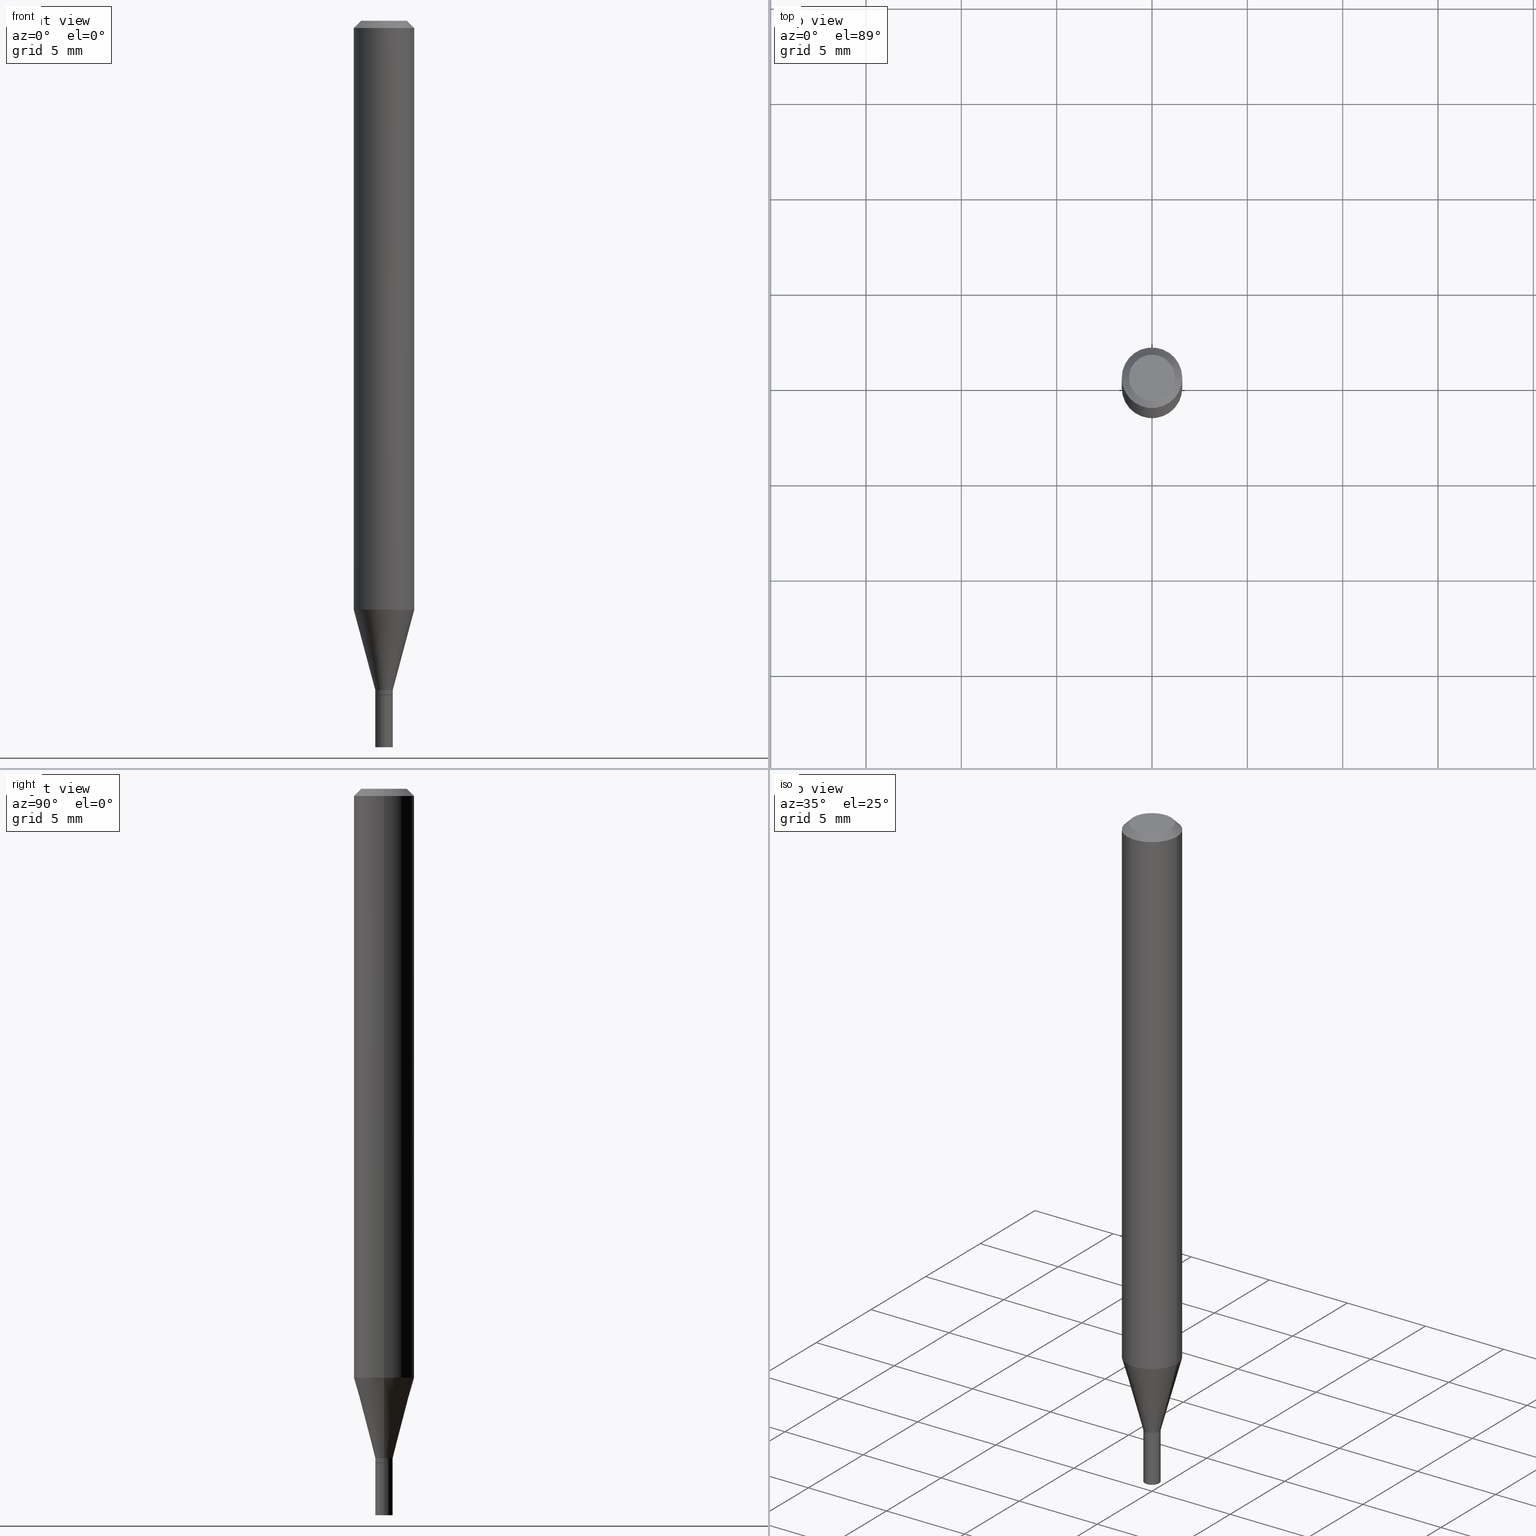
[diagram: canonical four-view strip — front | top / right | iso, engineering-drawing reading convention]
A machine part, canonical four-view strip (front | top / right | iso — engineering-drawing reading convention). The complete STEP part file that produces these views, byte-faithful:
ISO-10303-21;
HEADER;
FILE_DESCRIPTION (( 'STEP AP203' ),
    '1' );
FILE_NAME ('01187.STEP',
    '2024-03-19T23:48:16',
    ( '' ),
    ( '' ),
    'SwSTEP 2.0',
    'SolidWorks 2023',
    '' );
FILE_SCHEMA (( 'CONFIG_CONTROL_DESIGN' ));
ENDSEC;

DATA;
#1 = ORIENTED_EDGE ( 'NONE', *, *, #459, .T. ) ;
#2 = ADVANCED_BREP_SHAPE_REPRESENTATION ( '01187', ( #110, #297, #114 ), #374 ) ;
#3 = DIRECTION ( 'NONE',  ( 0.7071067811865598962, -7.319954787623298644E-15, -0.7071067811865351382 ) ) ;
#4 = FACE_OUTER_BOUND ( 'NONE', #448, .T. ) ;
#5 = DIRECTION ( 'NONE',  ( -2.445468806185136597E-29, 3.491481338843145583E-15, 1.000000000000000000 ) ) ;
#6 = ORIENTED_EDGE ( 'NONE', *, *, #68, .T. ) ;
#7 = AXIS2_PLACEMENT_3D ( 'NONE', #65, #373, #406 ) ;
#8 = AXIS2_PLACEMENT_3D ( 'NONE', #171, #146, #38 ) ;
#9 = ORIENTED_EDGE ( 'NONE', *, *, #77, .T. ) ;
#10 = ADVANCED_FACE ( 'NONE', ( #354 ), #415, .T. ) ;
#11 = FACE_OUTER_BOUND ( 'NONE', #148, .T. ) ;
#12 = ORIENTED_EDGE ( 'NONE', *, *, #268, .T. ) ;
#13 = CC_DESIGN_PERSON_AND_ORGANIZATION_ASSIGNMENT ( #255, #138, ( #266 ) ) ;
#14 = ORIENTED_EDGE ( 'NONE', *, *, #93, .T. ) ;
#15 = AXIS2_PLACEMENT_3D ( 'NONE', #243, #364, #288 ) ;
#16 = AXIS2_PLACEMENT_3D ( 'NONE', #278, #199, #204 ) ;
#17 = EDGE_LOOP ( 'NONE', ( #175, #1, #449, #368 ) ) ;
#18 = DIRECTION ( 'NONE',  ( -2.438088387897960049E-29, 3.491481338843145188E-15, 1.000000000000000000 ) ) ;
#19 = CYLINDRICAL_SURFACE ( 'NONE', #88, 0.01799999999999991884 ) ;
#20 = DIRECTION ( 'NONE',  ( -2.445468806185136597E-29, 3.491481338843145583E-15, 1.000000000000000000 ) ) ;
#21 = DIRECTION ( 'NONE',  ( 1.000000000000000000, -6.982962677686255667E-15, 0.000000000000000000 ) ) ;
#22 = AXIS2_PLACEMENT_3D ( 'NONE', #335, #403, #70 ) ;
#23 = CALENDAR_DATE ( 2024, 19, 3 ) ;
#24 = DIRECTION ( 'NONE',  ( -2.445468806185136597E-29, 3.491481338843145583E-15, 1.000000000000000000 ) ) ;
#25 = LINE ( 'NONE', #330, #437 ) ;
#26 = DIRECTION ( 'NONE',  ( -2.445468806185136597E-29, 3.491481338843145583E-15, 1.000000000000000000 ) ) ;
#27 = COORDINATED_UNIVERSAL_TIME_OFFSET ( 5, 0, .BEHIND. ) ;
#28 = AXIS2_PLACEMENT_3D ( 'NONE', #392, #20, #420 ) ;
#29 = LINE ( 'NONE', #367, #82 ) ;
#30 = ORIENTED_EDGE ( 'NONE', *, *, #154, .T. ) ;
#31 = CALENDAR_DATE ( 2024, 19, 3 ) ;
#32 = DIRECTION ( 'NONE',  ( -1.000000000000000000, 6.982962677686265922E-15, -4.876176775795935793E-29 ) ) ;
#33 = PERSON_AND_ORGANIZATION_ROLE ( 'creator' ) ;
#34 = DIRECTION ( 'NONE',  ( -2.445468806185136877E-29, 3.491481338843145188E-15, 1.000000000000000000 ) ) ;
#35 = ORIENTED_EDGE ( 'NONE', *, *, #182, .T. ) ;
#36 = CIRCLE ( 'NONE', #372, 0.01799999999999999864 ) ;
#37 = AXIS2_PLACEMENT_3D ( 'NONE', #208, #144, #153 ) ;
#38 = DIRECTION ( 'NONE',  ( 1.000000000000000000, -6.982962677686279332E-15, 0.000000000000000000 ) ) ;
#39 = VERTEX_POINT ( 'NONE', #62 ) ;
#40 = VERTEX_POINT ( 'NONE', #87 ) ;
#41 = ORIENTED_EDGE ( 'NONE', *, *, #310, .F. ) ;
#42 = PLANE ( 'NONE',  #222 ) ;
#43 = CLOSED_SHELL ( 'NONE', ( #377, #64, #212, #341 ) ) ;
#44 = VECTOR ( 'NONE', #433, 39.37007874015748143 ) ;
#45 = EDGE_CURVE ( 'NONE', #116, #80, #75, .T. ) ;
#46 = ORIENTED_EDGE ( 'NONE', *, *, #277, .T. ) ;
#47 = ORIENTED_EDGE ( 'NONE', *, *, #225, .T. ) ;
#48 = DIRECTION ( 'NONE',  ( -1.000000000000000000, 6.982962677686265922E-15, -4.876176775795935793E-29 ) ) ;
#49 = VERTEX_POINT ( 'NONE', #383 ) ;
#50 = CARTESIAN_POINT ( 'NONE',  ( -0.01799999999999999864, 1.278976924368180238E-16, -8.854083162458829188E-31 ) ) ;
#51 = APPROVAL ( #390, 'UNSPECIFIED' ) ;
#52 = APPROVAL_PERSON_ORGANIZATION ( #328, #85, #178 ) ;
#53 = DIRECTION ( 'NONE',  ( 1.000000000000000000, -6.982962677686250144E-15, 0.000000000000000000 ) ) ;
#54 = CARTESIAN_POINT ( 'NONE',  ( 2.973503574579014958E-29, -4.245375044395493202E-15, -1.215923739063185183 ) ) ;
#55 = DIRECTION ( 'NONE',  ( 1.000000000000000000, -6.982962677686250144E-15, 0.000000000000000000 ) ) ;
#56 = DIRECTION ( 'NONE',  ( 1.000000000000000000, -6.982962677686266711E-15, 0.000000000000000000 ) ) ;
#57 = EDGE_CURVE ( 'NONE', #348, #80, #130, .T. ) ;
#58 = COORDINATED_UNIVERSAL_TIME_OFFSET ( 5, 0, .BEHIND. ) ;
#59 = DIRECTION ( 'NONE',  ( -2.445468806185136597E-29, 3.491481338843145583E-15, 1.000000000000000000 ) ) ;
#60 = CIRCLE ( 'NONE', #97, 0.01749999999999999820 ) ;
#61 = DIRECTION ( 'NONE',  ( 1.000000000000000000, -6.982962677686279332E-15, 0.000000000000000000 ) ) ;
#62 = CARTESIAN_POINT ( 'NONE',  ( -0.01799999999999991884, -4.249307676194920787E-15, -1.382000000000000117 ) ) ;
#63 = PERSON_AND_ORGANIZATION ( #404, #347 ) ;
#64 = ADVANCED_FACE ( 'NONE', ( #389 ), #426, .F. ) ;
#65 = CARTESIAN_POINT ( 'NONE',  ( 0.000000000000000000, 0.000000000000000000, 0.000000000000000000 ) ) ;
#66 = APPROVAL_ROLE ( '' ) ;
#67 = DIRECTION ( 'NONE',  ( 1.000000000000000000, -6.982962677686266711E-15, 0.000000000000000000 ) ) ;
#68 = EDGE_CURVE ( 'NONE', #108, #141, #424, .T. ) ;
#69 = VECTOR ( 'NONE', #325, 39.37007874015748143 ) ;
#70 = DIRECTION ( 'NONE',  ( 1.000000000000000000, -6.982962677686250144E-15, 0.000000000000000000 ) ) ;
#71 = PERSON_AND_ORGANIZATION_ROLE ( 'creator' ) ;
#72 = FACE_OUTER_BOUND ( 'NONE', #416, .T. ) ;
#73 = DIRECTION ( 'NONE',  ( -2.445468806185136597E-29, 3.491481338843145583E-15, 1.000000000000000000 ) ) ;
#74 = EDGE_LOOP ( 'NONE', ( #226, #272, #6, #379 ) ) ;
#75 = CIRCLE ( 'NONE', #133, 0.06250000000000000000 ) ;
#76 = AXIS2_PLACEMENT_3D ( 'NONE', #301, #73, #67 ) ;
#77 = EDGE_CURVE ( 'NONE', #108, #39, #352, .T. ) ;
#78 = ORIENTED_EDGE ( 'NONE', *, *, #139, .T. ) ;
#79 = CC_DESIGN_PERSON_AND_ORGANIZATION_ASSIGNMENT ( #251, #71, ( #388 ) ) ;
#80 = VERTEX_POINT ( 'NONE', #168 ) ;
#81 = VECTOR ( 'NONE', #422, 39.37007874015748143 ) ;
#82 = VECTOR ( 'NONE', #210, 39.37007874015748143 ) ;
#83 = ORIENTED_EDGE ( 'NONE', *, *, #235, .T. ) ;
#84 = VERTEX_POINT ( 'NONE', #286 ) ;
#85 = APPROVAL ( #100, 'UNSPECIFIED' ) ;
#86 =( CONVERSION_BASED_UNIT ( 'INCH', #122 ) LENGTH_UNIT ( ) NAMED_UNIT ( #398 ) );
#87 = CARTESIAN_POINT ( 'NONE',  ( 0.01799999999999992231, -4.984089611198589115E-15, -1.391500000000000181 ) ) ;
#88 = AXIS2_PLACEMENT_3D ( 'NONE', #451, #127, #94 ) ;
#89 = AXIS2_PLACEMENT_3D ( 'NONE', #306, #160, #311 ) ;
#90 = CARTESIAN_POINT ( 'NONE',  ( 3.404092578209710223E-29, -4.860142023669658418E-15, -1.392000000000000126 ) ) ;
#91 = DIRECTION ( 'NONE',  ( 1.000000000000000000, -6.982962677686256455E-15, 0.000000000000000000 ) ) ;
#92 = CARTESIAN_POINT ( 'NONE',  ( 3.379637890147859239E-29, -4.825227210281227557E-15, -1.382000000000000117 ) ) ;
#93 = EDGE_CURVE ( 'NONE', #40, #446, #247, .T. ) ;
#94 = DIRECTION ( 'NONE',  ( 1.000000000000000000, -6.982962677686265922E-15, 4.876176775795935232E-29 ) ) ;
#95 = DATE_AND_TIME ( #23, #142 ) ;
#96 = CARTESIAN_POINT ( 'NONE',  ( 0.06250000000000001388, -4.681810211750884871E-15, -1.215923739063185183 ) ) ;
#97 = AXIS2_PLACEMENT_3D ( 'NONE', #237, #353, #355 ) ;
#98 = ADVANCED_FACE ( 'NONE', ( #327 ), #316, .T. ) ;
#99 = CYLINDRICAL_SURFACE ( 'NONE', #7, 0.01799999999999991884 ) ;
#100 = APPROVAL_STATUS ( 'not_yet_approved' ) ;
#101 = FACE_OUTER_BOUND ( 'NONE', #112, .T. ) ;
#102 = ORIENTED_EDGE ( 'NONE', *, *, #375, .T. ) ;
#103 = DATE_AND_TIME ( #366, #215 ) ;
#104 = FACE_OUTER_BOUND ( 'NONE', #254, .T. ) ;
#105 = SHAPE_DEFINITION_REPRESENTATION ( #169, #2 ) ;
#106 = CONICAL_SURFACE ( 'NONE', #143, 0.01799999999999991884, 0.2617993877991499074 ) ;
#107 = CARTESIAN_POINT ( 'NONE',  ( 0.06250000000000000000, -4.364351673553916694E-16, 3.047610484872459871E-30 ) ) ;
#108 = VERTEX_POINT ( 'NONE', #170 ) ;
#109 = PERSON_AND_ORGANIZATION ( #404, #347 ) ;
#110 = MANIFOLD_SOLID_BREP ( 'Body-Move/Copy2[1]', #43 ) ;
#111 = CARTESIAN_POINT ( 'NONE',  ( 3.402869843806617422E-29, -4.858396283000238492E-15, -1.391500000000000181 ) ) ;
#112 = EDGE_LOOP ( 'NONE', ( #303, #147 ) ) ;
#113 = ADVANCED_FACE ( 'NONE', ( #361 ), #19, .T. ) ;
#114 = AXIS2_PLACEMENT_3D ( 'NONE', #362, #455, #319 ) ;
#115 = ORIENTED_EDGE ( 'NONE', *, *, #154, .F. ) ;
#116 = VERTEX_POINT ( 'NONE', #162 ) ;
#117 = ORIENTED_EDGE ( 'NONE', *, *, #240, .F. ) ;
#118 = APPROVAL_PERSON_ORGANIZATION ( #63, #313, #66 ) ;
#119 = ORIENTED_EDGE ( 'NONE', *, *, #277, .F. ) ;
#120 = DIRECTION ( 'NONE',  ( -2.445468806185136597E-29, 3.491481338843145583E-15, 1.000000000000000000 ) ) ;
#121 = VERTEX_POINT ( 'NONE', #198 ) ;
#122 = LENGTH_MEASURE_WITH_UNIT ( LENGTH_MEASURE( 0.02539999999999999897 ), #287 );
#123 = APPLICATION_CONTEXT ( 'configuration controlled 3d designs of mechanical parts and assemblies' ) ;
#124 = CARTESIAN_POINT ( 'NONE',  ( 0.000000000000000000, 0.000000000000000000, 0.000000000000000000 ) ) ;
#125 =( NAMED_UNIT ( * ) SI_UNIT ( $, .STERADIAN. ) SOLID_ANGLE_UNIT ( ) );
#126 = AXIS2_PLACEMENT_3D ( 'NONE', #111, #257, #217 ) ;
#127 = DIRECTION ( 'NONE',  ( -2.445468806185136597E-29, 3.491481338843145583E-15, 1.000000000000000000 ) ) ;
#128 = CARTESIAN_POINT ( 'NONE',  ( 3.404092578209710223E-29, -4.860142023669658418E-15, -1.392000000000000126 ) ) ;
#129 = ADVANCED_FACE ( 'NONE', ( #320 ), #245, .T. ) ;
#130 = LINE ( 'NONE', #166, #81 ) ;
#131 = LINE ( 'NONE', #396, #290 ) ;
#132 = CC_DESIGN_PERSON_AND_ORGANIZATION_ASSIGNMENT ( #284, #425, ( #326 ) ) ;
#133 = AXIS2_PLACEMENT_3D ( 'NONE', #250, #453, #56 ) ;
#134 = PERSON_AND_ORGANIZATION ( #404, #347 ) ;
#135 = LINE ( 'NONE', #298, #195 ) ;
#136 = CARTESIAN_POINT ( 'NONE',  ( -0.01799999999999999864, -4.920784323530369756E-15, -1.392000000000000126 ) ) ;
#137 = EDGE_LOOP ( 'NONE', ( #14, #157, #270, #380 ) ) ;
#138 = PERSON_AND_ORGANIZATION_ROLE ( 'design_supplier' ) ;
#139 = EDGE_CURVE ( 'NONE', #305, #308, #36, .T. ) ;
#140 = CARTESIAN_POINT ( 'NONE',  ( 0.01799999999999999864, -4.985835351868011408E-15, -1.392000000000000126 ) ) ;
#141 = VERTEX_POINT ( 'NONE', #96 ) ;
#142 = LOCAL_TIME ( 19, 48, 16.00000000000000000, #58 ) ;
#143 = AXIS2_PLACEMENT_3D ( 'NONE', #92, #161, #207 ) ;
#144 = DIRECTION ( 'NONE',  ( -2.445468806185136597E-29, 3.491481338843145583E-15, 1.000000000000000000 ) ) ;
#145 = CYLINDRICAL_SURFACE ( 'NONE', #248, 0.06250000000000000000 ) ;
#146 = DIRECTION ( 'NONE',  ( -2.445468806185136597E-29, 3.491481338843145583E-15, 1.000000000000000000 ) ) ;
#147 = ORIENTED_EDGE ( 'NONE', *, *, #329, .T. ) ;
#148 = EDGE_LOOP ( 'NONE', ( #78, #346 ) ) ;
#149 = AXIS2_PLACEMENT_3D ( 'NONE', #365, #26, #342 ) ;
#150 = LOCAL_TIME ( 19, 48, 16.00000000000000000, #260 ) ;
#151 = VERTEX_POINT ( 'NONE', #386 ) ;
#152 = VERTEX_POINT ( 'NONE', #283 ) ;
#153 = DIRECTION ( 'NONE',  ( 1.000000000000000000, -6.982962677686267499E-15, 4.852736867747366768E-29 ) ) ;
#154 = EDGE_CURVE ( 'NONE', #312, #121, #430, .T. ) ;
#155 = ORIENTED_EDGE ( 'NONE', *, *, #293, .F. ) ;
#156 = CC_DESIGN_APPROVAL ( #51, ( #388 ) ) ;
#157 = ORIENTED_EDGE ( 'NONE', *, *, #256, .T. ) ;
#158 = DIRECTION ( 'NONE',  ( -2.445468806185136597E-29, 3.491481338843145583E-15, 1.000000000000000000 ) ) ;
#159 = ADVANCED_FACE ( 'NONE', ( #460 ), #200, .F. ) ;
#160 = DIRECTION ( 'NONE',  ( -2.445468806185136597E-29, 3.491481338843145583E-15, 1.000000000000000000 ) ) ;
#161 = DIRECTION ( 'NONE',  ( -2.445468806185136597E-29, 3.491481338843145583E-15, 1.000000000000000000 ) ) ;
#162 = CARTESIAN_POINT ( 'NONE',  ( 0.06250000000000000000, -4.888073874380388472E-16, -0.01499999999999999944 ) ) ;
#163 = DIRECTION ( 'NONE',  ( 1.000000000000000000, -6.982962677686270655E-15, 0.000000000000000000 ) ) ;
#164 = AXIS2_PLACEMENT_3D ( 'NONE', #128, #158, #53 ) ;
#165 = AXIS2_PLACEMENT_3D ( 'NONE', #369, #261, #32 ) ;
#166 = CARTESIAN_POINT ( 'NONE',  ( -0.06250000000000000000, 4.440892098500626162E-16, -3.074334431409316114E-30 ) ) ;
#167 = APPROVAL_ROLE ( '' ) ;
#168 = CARTESIAN_POINT ( 'NONE',  ( -0.06250000000000000000, -1.704784422389007524E-15, -0.01499999999999999944 ) ) ;
#169 = PRODUCT_DEFINITION_SHAPE ( 'NONE', 'NONE',  #388 ) ;
#170 = CARTESIAN_POINT ( 'NONE',  ( 0.01799999999999991884, -4.950920538479579759E-15, -1.382000000000000117 ) ) ;
#171 = CARTESIAN_POINT ( 'NONE',  ( 3.668203209277704895E-29, -5.237222008264718177E-15, -1.500000000000000222 ) ) ;
#172 = CONICAL_SURFACE ( 'NONE', #438, 0.06250000000000000000, 0.7853981633974658205 ) ;
#173 = CARTESIAN_POINT ( 'NONE',  ( -0.06250000000000000000, 3.840629472727444916E-16, -0.01499999999999999944 ) ) ;
#174 = EDGE_CURVE ( 'NONE', #121, #40, #25, .T. ) ;
#175 = ORIENTED_EDGE ( 'NONE', *, *, #452, .T. ) ;
#176 = APPROVAL_DATE_TIME ( #397, #313 ) ;
#177 = CARTESIAN_POINT ( 'NONE',  ( 0.06250000000000000000, -4.811533449433679005E-16, -0.01499999999999999944 ) ) ;
#178 = APPROVAL_ROLE ( '' ) ;
#179 = EDGE_CURVE ( 'NONE', #312, #446, #131, .T. ) ;
#180 = DIRECTION ( 'NONE',  ( -2.445468806185136877E-29, 3.491481338843145188E-15, 1.000000000000000000 ) ) ;
#181 = CONICAL_SURFACE ( 'NONE', #22, 0.01749999999999999820, 0.7853981633974718157 ) ;
#182 = EDGE_CURVE ( 'NONE', #40, #108, #135, .T. ) ;
#183 = DIRECTION ( 'NONE',  ( -0.7071067811865642261, 7.493145998870414114E-15, 0.7071067811865309194 ) ) ;
#184 = ORIENTED_EDGE ( 'NONE', *, *, #240, .T. ) ;
#185 = ORIENTED_EDGE ( 'NONE', *, *, #452, .F. ) ;
#186 = EDGE_LOOP ( 'NONE', ( #119, #233, #12, #351 ) ) ;
#187 = CIRCLE ( 'NONE', #454, 0.01799999999999999864 ) ;
#188 = LOCAL_TIME ( 19, 48, 16.00000000000000000, #27 ) ;
#189 = ORIENTED_EDGE ( 'NONE', *, *, #375, .F. ) ;
#190 = ADVANCED_FACE ( 'NONE', ( #304 ), #99, .T. ) ;
#191 = EDGE_LOOP ( 'NONE', ( #315, #381, #318, #314 ) ) ;
#192 = FACE_OUTER_BOUND ( 'NONE', #186, .T. ) ;
#193 = ORIENTED_EDGE ( 'NONE', *, *, #256, .F. ) ;
#194 =( NAMED_UNIT ( * ) PLANE_ANGLE_UNIT ( ) SI_UNIT ( $, .RADIAN. ) );
#195 = VECTOR ( 'NONE', #464, 39.37007874015748143 ) ;
#196 = APPROVAL_PERSON_ORGANIZATION ( #244, #51, #167 ) ;
#197 = EDGE_CURVE ( 'NONE', #348, #141, #229, .T. ) ;
#198 = CARTESIAN_POINT ( 'NONE',  ( 0.01749999999999999820, -4.982343870529167612E-15, -1.392000000000000126 ) ) ;
#199 = DIRECTION ( 'NONE',  ( -2.445468806185136597E-29, 3.491481338843145583E-15, 1.000000000000000000 ) ) ;
#200 = PLANE ( 'NONE',  #15 ) ;
#201 = FACE_OUTER_BOUND ( 'NONE', #17, .T. ) ;
#202 = APPLICATION_CONTEXT ( 'configuration controlled 3d designs of mechanical parts and assemblies' ) ;
#203 = DIRECTION ( 'NONE',  ( 1.000000000000000000, -6.982962677686265922E-15, 4.876176775795935793E-29 ) ) ;
#204 = DIRECTION ( 'NONE',  ( 1.000000000000000000, -6.982962677686279332E-15, 0.000000000000000000 ) ) ;
#205 = AXIS2_PLACEMENT_3D ( 'NONE', #434, #5, #440 ) ;
#206 = CARTESIAN_POINT ( 'NONE',  ( 3.404092578209710223E-29, -4.860142023669658418E-15, -1.392000000000000126 ) ) ;
#207 = DIRECTION ( 'NONE',  ( 1.000000000000000000, -6.982962677686256455E-15, 0.000000000000000000 ) ) ;
#208 = CARTESIAN_POINT ( 'NONE',  ( 1.278896122067429216E-44, -1.825924719719875646E-30, -5.229656247639779395E-16 ) ) ;
#209 = CARTESIAN_POINT ( 'NONE',  ( 3.584916967085606921E-29, -5.356492647442320375E-15, -1.500000000000000222 ) ) ;
#210 = DIRECTION ( 'NONE',  ( -2.445468806185136877E-29, 3.491481338843145188E-15, 1.000000000000000000 ) ) ;
#211 = DATE_TIME_ROLE ( 'creation_date' ) ;
#212 = ADVANCED_FACE ( 'NONE', ( #72 ), #219, .T. ) ;
#213 = LINE ( 'NONE', #107, #309 ) ;
#214 = AXIS2_PLACEMENT_3D ( 'NONE', #292, #394, #356 ) ;
#215 = LOCAL_TIME ( 19, 48, 16.00000000000000000, #465 ) ;
#216 = EDGE_LOOP ( 'NONE', ( #332, #417, #378, #155 ) ) ;
#217 = DIRECTION ( 'NONE',  ( 1.000000000000000000, -6.982962677686255667E-15, 0.000000000000000000 ) ) ;
#218 = APPROVAL_STATUS ( 'not_yet_approved' ) ;
#219 = CYLINDRICAL_SURFACE ( 'NONE', #205, 0.01799999999999999864 ) ;
#220 = CARTESIAN_POINT ( 'NONE',  ( 0.000000000000000000, 0.000000000000000000, 0.000000000000000000 ) ) ;
#221 = AXIS2_PLACEMENT_3D ( 'NONE', #206, #24, #55 ) ;
#222 = AXIS2_PLACEMENT_3D ( 'NONE', #267, #413, #48 ) ;
#223 = PRODUCT_RELATED_PRODUCT_CATEGORY ( 'detail', '', ( #326 ) ) ;
#224 = ORIENTED_EDGE ( 'NONE', *, *, #45, .F. ) ;
#225 = EDGE_CURVE ( 'NONE', #39, #348, #252, .T. ) ;
#226 = ORIENTED_EDGE ( 'NONE', *, *, #225, .F. ) ;
#227 = EDGE_CURVE ( 'NONE', #446, #40, #393, .T. ) ;
#228 = ORIENTED_EDGE ( 'NONE', *, *, #179, .F. ) ;
#229 = CIRCLE ( 'NONE', #149, 0.06250000000000000000 ) ;
#230 = VECTOR ( 'NONE', #3, 39.37007874015748143 ) ;
#231 = ADVANCED_FACE ( 'NONE', ( #104 ), #181, .T. ) ;
#232 = ORIENTED_EDGE ( 'NONE', *, *, #45, .T. ) ;
#233 = ORIENTED_EDGE ( 'NONE', *, *, #333, .F. ) ;
#234 = CARTESIAN_POINT ( 'NONE',  ( 3.404092578209710223E-29, -4.860142023669658418E-15, -1.392000000000000126 ) ) ;
#235 = EDGE_CURVE ( 'NONE', #152, #305, #29, .T. ) ;
#236 = CARTESIAN_POINT ( 'NONE',  ( 0.01799999999999991884, -4.950920538479579759E-15, -1.382000000000000117 ) ) ;
#237 = CARTESIAN_POINT ( 'NONE',  ( 3.404092578209710223E-29, -4.860142023669658418E-15, -1.392000000000000126 ) ) ;
#238 = CLOSED_SHELL ( 'NONE', ( #190, #98, #285, #321, #10, #370, #129, #343, #271, #159, #231, #113 ) ) ;
#239 = DIRECTION ( 'NONE',  ( 1.000000000000000000, -6.982962677686266711E-15, 4.876176775795935793E-29 ) ) ;
#240 = EDGE_CURVE ( 'NONE', #151, #152, #385, .T. ) ;
#241 = DIRECTION ( 'NONE',  ( 1.000000000000000000, -6.982962677686279332E-15, 0.000000000000000000 ) ) ;
#242 = FACE_OUTER_BOUND ( 'NONE', #74, .T. ) ;
#243 = CARTESIAN_POINT ( 'NONE',  ( 3.404092578209710223E-29, -4.860142023669658418E-15, -1.392000000000000126 ) ) ;
#244 = PERSON_AND_ORGANIZATION ( #404, #347 ) ;
#245 = CYLINDRICAL_SURFACE ( 'NONE', #273, 0.06250000000000000000 ) ;
#246 = DIRECTION ( 'NONE',  ( 1.000000000000000000, -6.982962677686256455E-15, 0.000000000000000000 ) ) ;
#247 = CIRCLE ( 'NONE', #258, 0.01799999999999992231 ) ;
#248 = AXIS2_PLACEMENT_3D ( 'NONE', #220, #265, #239 ) ;
#249 = CC_DESIGN_SECURITY_CLASSIFICATION ( #423, ( #266 ) ) ;
#250 = CARTESIAN_POINT ( 'NONE',  ( 3.668203209277705088E-31, -5.237222008264718399E-17, -0.01499999999999999944 ) ) ;
#251 = PERSON_AND_ORGANIZATION ( #404, #347 ) ;
#252 = LINE ( 'NONE', #371, #291 ) ;
#253 = PLANE ( 'NONE',  #165 ) ;
#254 = EDGE_LOOP ( 'NONE', ( #228, #30, #445, #411 ) ) ;
#255 = PERSON_AND_ORGANIZATION ( #404, #347 ) ;
#256 = EDGE_CURVE ( 'NONE', #446, #39, #431, .T. ) ;
#257 = DIRECTION ( 'NONE',  ( -2.445468806185136597E-29, 3.491481338843145583E-15, 1.000000000000000000 ) ) ;
#258 = AXIS2_PLACEMENT_3D ( 'NONE', #427, #358, #21 ) ;
#259 = CIRCLE ( 'NONE', #37, 0.04749999999999999362 ) ;
#260 = COORDINATED_UNIVERSAL_TIME_OFFSET ( 5, 0, .BEHIND. ) ;
#261 = DIRECTION ( 'NONE',  ( 2.438088387897960049E-29, -3.491481338843145188E-15, -1.000000000000000000 ) ) ;
#262 = DIRECTION ( 'NONE',  ( -0.2588190451025211836, 5.211531920934547886E-15, 0.9659258262890679791 ) ) ;
#263 = ORIENTED_EDGE ( 'NONE', *, *, #268, .F. ) ;
#264 = DIRECTION ( 'NONE',  ( 2.445468806185136597E-29, -3.491481338843145583E-15, -1.000000000000000000 ) ) ;
#265 = DIRECTION ( 'NONE',  ( -2.445468806185136597E-29, 3.491481338843145583E-15, 1.000000000000000000 ) ) ;
#266 = PRODUCT_DEFINITION_FORMATION_WITH_SPECIFIED_SOURCE ( 'ANY', '', #326, .NOT_KNOWN. ) ;
#267 = CARTESIAN_POINT ( 'NONE',  ( 1.256933281983868125E-16, 0.01799999999999513794, -1.392000000000000126 ) ) ;
#268 = EDGE_CURVE ( 'NONE', #49, #80, #294, .T. ) ;
#269 = EDGE_LOOP ( 'NONE', ( #193, #338, #35, #444 ) ) ;
#270 = ORIENTED_EDGE ( 'NONE', *, *, #77, .F. ) ;
#271 = ADVANCED_FACE ( 'NONE', ( #101 ), #253, .F. ) ;
#272 = ORIENTED_EDGE ( 'NONE', *, *, #357, .T. ) ;
#273 = AXIS2_PLACEMENT_3D ( 'NONE', #124, #281, #323 ) ;
#274 = CIRCLE ( 'NONE', #76, 0.06250000000000000000 ) ;
#275 = LOCAL_TIME ( 19, 48, 16.00000000000000000, #432 ) ;
#276 = ORIENTED_EDGE ( 'NONE', *, *, #57, .T. ) ;
#277 = EDGE_CURVE ( 'NONE', #84, #116, #399, .T. ) ;
#278 = CARTESIAN_POINT ( 'NONE',  ( 3.668203209277704895E-29, -5.237222008264718177E-15, -1.500000000000000222 ) ) ;
#279 = ORIENTED_EDGE ( 'NONE', *, *, #329, .F. ) ;
#280 = MECHANICAL_CONTEXT ( 'NONE', #202, 'mechanical' ) ;
#281 = DIRECTION ( 'NONE',  ( -2.445468806185136597E-29, 3.491481338843145583E-15, 1.000000000000000000 ) ) ;
#282 = CIRCLE ( 'NONE', #360, 0.06250000000000000000 ) ;
#283 = CARTESIAN_POINT ( 'NONE',  ( 0.01799999999999999864, -5.362915336463071956E-15, -1.500000000000000222 ) ) ;
#284 = PERSON_AND_ORGANIZATION ( #404, #347 ) ;
#285 = ADVANCED_FACE ( 'NONE', ( #439 ), #172, .T. ) ;
#286 = CARTESIAN_POINT ( 'NONE',  ( 0.04749999999999999362, -4.035134999187587991E-16, -5.229656247639753758E-16 ) ) ;
#287 =( LENGTH_UNIT ( ) NAMED_UNIT ( * ) SI_UNIT ( $, .METRE. ) );
#288 = DIRECTION ( 'NONE',  ( 1.000000000000000000, -6.982962677686265922E-15, 4.876176775795935793E-29 ) ) ;
#289 = CALENDAR_DATE ( 2024, 19, 3 ) ;
#290 = VECTOR ( 'NONE', #183, 39.37007874015748143 ) ;
#291 = VECTOR ( 'NONE', #262, 39.37007874015748854 ) ;
#292 = CARTESIAN_POINT ( 'NONE',  ( 3.379637890147859239E-29, -4.825227210281227557E-15, -1.382000000000000117 ) ) ;
#293 = EDGE_CURVE ( 'NONE', #80, #116, #274, .T. ) ;
#294 = LINE ( 'NONE', #173, #44 ) ;
#295 = EDGE_LOOP ( 'NONE', ( #9, #47, #189, #349 ) ) ;
#296 = UNCERTAINTY_MEASURE_WITH_UNIT (LENGTH_MEASURE( 1.000000000000000082E-05 ), #86, 'distance_accuracy_value', 'NONE');
#297 = MANIFOLD_SOLID_BREP ( 'Body-Move/Copy2[2]', #238 ) ;
#298 = CARTESIAN_POINT ( 'NONE',  ( 0.01799999999999991884, -1.256933281983522259E-16, 8.777118196432644280E-31 ) ) ;
#299 = APPROVAL_DATE_TIME ( #103, #85 ) ;
#300 = AXIS2_PLACEMENT_3D ( 'NONE', #391, #457, #91 ) ;
#301 = CARTESIAN_POINT ( 'NONE',  ( 3.668203209277705088E-31, -5.237222008264718399E-17, -0.01499999999999999944 ) ) ;
#302 = CIRCLE ( 'NONE', #463, 0.01799999999999991884 ) ;
#303 = ORIENTED_EDGE ( 'NONE', *, *, #333, .T. ) ;
#304 = FACE_OUTER_BOUND ( 'NONE', #137, .T. ) ;
#305 = VERTEX_POINT ( 'NONE', #140 ) ;
#306 = CARTESIAN_POINT ( 'NONE',  ( 1.278896122067429216E-44, -1.825924719719875646E-30, -5.229656247639779395E-16 ) ) ;
#307 = CARTESIAN_POINT ( 'NONE',  ( -0.06250000000000001388, -3.801285834545430586E-15, -1.215923739063185183 ) ) ;
#308 = VERTEX_POINT ( 'NONE', #136 ) ;
#309 = VECTOR ( 'NONE', #34, 39.37007874015748143 ) ;
#310 = EDGE_CURVE ( 'NONE', #141, #116, #213, .T. ) ;
#311 = DIRECTION ( 'NONE',  ( 1.000000000000000000, -6.982962677686267499E-15, 4.852736867747366768E-29 ) ) ;
#312 = VERTEX_POINT ( 'NONE', #339 ) ;
#313 = APPROVAL ( #218, 'UNSPECIFIED' ) ;
#314 = ORIENTED_EDGE ( 'NONE', *, *, #174, .F. ) ;
#315 = ORIENTED_EDGE ( 'NONE', *, *, #421, .T. ) ;
#316 = CONICAL_SURFACE ( 'NONE', #164, 0.01749999999999999820, 0.7853981633974718157 ) ;
#317 = AXIS2_PLACEMENT_3D ( 'NONE', #350, #264, #409 ) ;
#318 = ORIENTED_EDGE ( 'NONE', *, *, #93, .F. ) ;
#319 = DIRECTION ( 'NONE',  ( 1.000000000000000000, 0.000000000000000000, 0.000000000000000000 ) ) ;
#320 = FACE_OUTER_BOUND ( 'NONE', #216, .T. ) ;
#321 = ADVANCED_FACE ( 'NONE', ( #4 ), #145, .T. ) ;
#322 = LINE ( 'NONE', #50, #69 ) ;
#323 = DIRECTION ( 'NONE',  ( 1.000000000000000000, -6.982962677686266711E-15, 4.876176775795935793E-29 ) ) ;
#324 = DIRECTION ( 'NONE',  ( 0.2588190451025211836, 1.565188264969622559E-15, 0.9659258262890679791 ) ) ;
#325 = DIRECTION ( 'NONE',  ( -2.445468806185136877E-29, 3.491481338843145188E-15, 1.000000000000000000 ) ) ;
#326 = PRODUCT ( '01187', '01187', '', ( #280 ) ) ;
#327 = FACE_OUTER_BOUND ( 'NONE', #191, .T. ) ;
#328 = PERSON_AND_ORGANIZATION ( #404, #347 ) ;
#329 = EDGE_CURVE ( 'NONE', #84, #49, #402, .T. ) ;
#330 = CARTESIAN_POINT ( 'NONE',  ( 0.01749999999999999820, -4.982343870529167612E-15, -1.392000000000000126 ) ) ;
#331 = CARTESIAN_POINT ( 'NONE',  ( -0.01799999999999991884, 1.278976924368174568E-16, -8.854083162458790652E-31 ) ) ;
#332 = ORIENTED_EDGE ( 'NONE', *, *, #57, .F. ) ;
#333 = EDGE_CURVE ( 'NONE', #49, #84, #259, .T. ) ;
#334 = PERSON_AND_ORGANIZATION_ROLE ( 'classification_officer' ) ;
#335 = CARTESIAN_POINT ( 'NONE',  ( 3.404092578209710223E-29, -4.860142023669658418E-15, -1.392000000000000126 ) ) ;
#336 = ORIENTED_EDGE ( 'NONE', *, *, #421, .F. ) ;
#337 = CARTESIAN_POINT ( 'NONE',  ( 3.668203209277705088E-31, -5.237222008264718399E-17, -0.01499999999999999944 ) ) ;
#338 = ORIENTED_EDGE ( 'NONE', *, *, #227, .T. ) ;
#339 = CARTESIAN_POINT ( 'NONE',  ( -0.01749999999999999820, -4.733147817737530757E-15, -1.392000000000000126 ) ) ;
#340 = CIRCLE ( 'NONE', #16, 0.01799999999999999864 ) ;
#341 = ADVANCED_FACE ( 'NONE', ( #11 ), #42, .F. ) ;
#342 = DIRECTION ( 'NONE',  ( 1.000000000000000000, -6.982962677686270655E-15, 0.000000000000000000 ) ) ;
#343 = ADVANCED_FACE ( 'NONE', ( #192 ), #410, .T. ) ;
#344 = ORIENTED_EDGE ( 'NONE', *, *, #459, .F. ) ;
#345 = DESIGN_CONTEXT ( 'detailed design', #123, 'design' ) ;
#346 = ORIENTED_EDGE ( 'NONE', *, *, #363, .T. ) ;
#347 = ORGANIZATION ( 'UNSPECIFIED', 'UNSPECIFIED', '' ) ;
#348 = VERTEX_POINT ( 'NONE', #307 ) ;
#349 = ORIENTED_EDGE ( 'NONE', *, *, #68, .F. ) ;
#350 = CARTESIAN_POINT ( 'NONE',  ( 3.668203209277705088E-31, -5.237222008264718399E-17, -0.01499999999999999944 ) ) ;
#351 = ORIENTED_EDGE ( 'NONE', *, *, #293, .T. ) ;
#352 = CIRCLE ( 'NONE', #300, 0.01799999999999991884 ) ;
#353 = DIRECTION ( 'NONE',  ( -2.445468806185136597E-29, 3.491481338843145583E-15, 1.000000000000000000 ) ) ;
#354 = FACE_OUTER_BOUND ( 'NONE', #295, .T. ) ;
#355 = DIRECTION ( 'NONE',  ( 1.000000000000000000, -6.982962677686250144E-15, 0.000000000000000000 ) ) ;
#356 = DIRECTION ( 'NONE',  ( 1.000000000000000000, -6.982962677686256455E-15, 0.000000000000000000 ) ) ;
#357 = EDGE_CURVE ( 'NONE', #39, #108, #302, .T. ) ;
#358 = DIRECTION ( 'NONE',  ( -2.445468806185136597E-29, 3.491481338843145583E-15, 1.000000000000000000 ) ) ;
#359 = APPLICATION_PROTOCOL_DEFINITION ( 'international standard', 'config_control_design', 1994, #123 ) ;
#360 = AXIS2_PLACEMENT_3D ( 'NONE', #54, #120, #163 ) ;
#361 = FACE_OUTER_BOUND ( 'NONE', #269, .T. ) ;
#362 = CARTESIAN_POINT ( 'NONE',  ( 0.000000000000000000, 0.000000000000000000, 0.000000000000000000 ) ) ;
#363 = EDGE_CURVE ( 'NONE', #308, #305, #187, .T. ) ;
#364 = DIRECTION ( 'NONE',  ( -2.438088387897960049E-29, 3.491481338843145188E-15, 1.000000000000000000 ) ) ;
#365 = CARTESIAN_POINT ( 'NONE',  ( 2.973503574579014958E-29, -4.245375044395493202E-15, -1.215923739063185183 ) ) ;
#366 = CALENDAR_DATE ( 2024, 19, 3 ) ;
#367 = CARTESIAN_POINT ( 'NONE',  ( 0.01799999999999999864, -1.256933281983527929E-16, 8.777118196432682816E-31 ) ) ;
#368 = ORIENTED_EDGE ( 'NONE', *, *, #235, .F. ) ;
#369 = CARTESIAN_POINT ( 'NONE',  ( 3.316907271900976096E-16, 0.04749999999999999362, -4.273281759770383169E-16 ) ) ;
#370 = ADVANCED_FACE ( 'NONE', ( #242 ), #106, .T. ) ;
#371 = CARTESIAN_POINT ( 'NONE',  ( -0.01799999999999991884, -4.697329517844410199E-15, -1.382000000000000117 ) ) ;
#372 = AXIS2_PLACEMENT_3D ( 'NONE', #90, #59, #241 ) ;
#373 = DIRECTION ( 'NONE',  ( -2.445468806185136597E-29, 3.491481338843145583E-15, 1.000000000000000000 ) ) ;
#374 =( GEOMETRIC_REPRESENTATION_CONTEXT ( 3 ) GLOBAL_UNCERTAINTY_ASSIGNED_CONTEXT ( ( #296 ) ) GLOBAL_UNIT_ASSIGNED_CONTEXT ( ( #86, #194, #125 ) ) REPRESENTATION_CONTEXT ( 'NONE', 'WORKASPACE' ) );
#375 = EDGE_CURVE ( 'NONE', #141, #348, #282, .T. ) ;
#376 = EDGE_LOOP ( 'NONE', ( #279, #46, #232, #263 ) ) ;
#377 = ADVANCED_FACE ( 'NONE', ( #201 ), #458, .T. ) ;
#378 = ORIENTED_EDGE ( 'NONE', *, *, #310, .T. ) ;
#379 = ORIENTED_EDGE ( 'NONE', *, *, #197, .F. ) ;
#380 = ORIENTED_EDGE ( 'NONE', *, *, #182, .F. ) ;
#381 = ORIENTED_EDGE ( 'NONE', *, *, #179, .T. ) ;
#382 = DIRECTION ( 'NONE',  ( -2.445468806185136597E-29, 3.491481338843145583E-15, 1.000000000000000000 ) ) ;
#383 = CARTESIAN_POINT ( 'NONE',  ( -0.04749999999999999362, 3.578768372314202124E-16, -5.229656247639803061E-16 ) ) ;
#384 = VECTOR ( 'NONE', #324, 39.37007874015748854 ) ;
#385 = CIRCLE ( 'NONE', #8, 0.01799999999999999864 ) ;
#386 = CARTESIAN_POINT ( 'NONE',  ( -0.01799999999999999864, -4.920784323530369756E-15, -1.500000000000000222 ) ) ;
#387 = CARTESIAN_POINT ( 'NONE',  ( -0.01799999999999992231, -4.730498590563419556E-15, -1.391500000000000181 ) ) ;
#388 = PRODUCT_DEFINITION ( 'UNKNOWN', '', #266, #345 ) ;
#389 = FACE_OUTER_BOUND ( 'NONE', #414, .T. ) ;
#390 = APPROVAL_STATUS ( 'not_yet_approved' ) ;
#391 = CARTESIAN_POINT ( 'NONE',  ( 3.379637890147859239E-29, -4.825227210281227557E-15, -1.382000000000000117 ) ) ;
#392 = CARTESIAN_POINT ( 'NONE',  ( 0.000000000000000000, 0.000000000000000000, 0.000000000000000000 ) ) ;
#393 = CIRCLE ( 'NONE', #126, 0.01799999999999992231 ) ;
#394 = DIRECTION ( 'NONE',  ( -2.445468806185136597E-29, 3.491481338843145583E-15, 1.000000000000000000 ) ) ;
#395 = DATE_AND_TIME ( #461, #150 ) ;
#396 = CARTESIAN_POINT ( 'NONE',  ( -0.01749999999999999820, -4.735797044911641169E-15, -1.392000000000000126 ) ) ;
#397 = DATE_AND_TIME ( #289, #275 ) ;
#398 = DIMENSIONAL_EXPONENTS ( 1.000000000000000000, 0.000000000000000000, 0.000000000000000000, 0.000000000000000000, 0.000000000000000000, 0.000000000000000000, 0.000000000000000000 ) ;
#399 = LINE ( 'NONE', #177, #230 ) ;
#400 = DATE_AND_TIME ( #31, #188 ) ;
#401 = AXIS2_PLACEMENT_3D ( 'NONE', #209, #18, #203 ) ;
#402 = CIRCLE ( 'NONE', #89, 0.04749999999999999362 ) ;
#403 = DIRECTION ( 'NONE',  ( -2.445468806185136597E-29, 3.491481338843145583E-15, 1.000000000000000000 ) ) ;
#404 = PERSON ( 'UNSPECIFIED', 'UNSPECIFIED', 'UNSPECIFIED', ('UNSPECIFIED'), ('UNSPECIFIED'), ('UNSPECIFIED') ) ;
#405 = SECURITY_CLASSIFICATION_LEVEL ( 'unclassified' ) ;
#406 = DIRECTION ( 'NONE',  ( 1.000000000000000000, -6.982962677686265922E-15, 4.876176775795935232E-29 ) ) ;
#407 = CC_DESIGN_DATE_AND_TIME_ASSIGNMENT ( #400, #435, ( #423 ) ) ;
#408 = DIRECTION ( 'NONE',  ( -1.000000000000000000, 6.982962677686266711E-15, 0.000000000000000000 ) ) ;
#409 = DIRECTION ( 'NONE',  ( -1.000000000000000000, 6.982962677686266711E-15, 0.000000000000000000 ) ) ;
#410 = CONICAL_SURFACE ( 'NONE', #317, 0.06250000000000000000, 0.7853981633974658205 ) ;
#411 = ORIENTED_EDGE ( 'NONE', *, *, #227, .F. ) ;
#412 = EDGE_LOOP ( 'NONE', ( #336, #115 ) ) ;
#413 = DIRECTION ( 'NONE',  ( 2.438088387897960049E-29, -3.491481338843145188E-15, -1.000000000000000000 ) ) ;
#414 = EDGE_LOOP ( 'NONE', ( #185, #117 ) ) ;
#415 = CONICAL_SURFACE ( 'NONE', #214, 0.01799999999999991884, 0.2617993877991499074 ) ;
#416 = EDGE_LOOP ( 'NONE', ( #344, #184, #83, #419 ) ) ;
#417 = ORIENTED_EDGE ( 'NONE', *, *, #197, .T. ) ;
#418 = DIRECTION ( 'NONE',  ( -2.445468806185136597E-29, 3.491481338843145583E-15, 1.000000000000000000 ) ) ;
#419 = ORIENTED_EDGE ( 'NONE', *, *, #363, .F. ) ;
#420 = DIRECTION ( 'NONE',  ( 1.000000000000000000, -6.982962677686266711E-15, 4.876176775795935232E-29 ) ) ;
#421 = EDGE_CURVE ( 'NONE', #121, #312, #60, .T. ) ;
#422 = DIRECTION ( 'NONE',  ( -2.445468806185136877E-29, 3.491481338843145188E-15, 1.000000000000000000 ) ) ;
#423 = SECURITY_CLASSIFICATION ( '', '', #405 ) ;
#424 = LINE ( 'NONE', #236, #384 ) ;
#425 = PERSON_AND_ORGANIZATION_ROLE ( 'design_owner' ) ;
#426 = PLANE ( 'NONE',  #401 ) ;
#427 = CARTESIAN_POINT ( 'NONE',  ( 3.402869843806617422E-29, -4.858396283000238492E-15, -1.391500000000000181 ) ) ;
#428 = CC_DESIGN_DATE_AND_TIME_ASSIGNMENT ( #395, #211, ( #388 ) ) ;
#429 = APPROVAL_DATE_TIME ( #95, #51 ) ;
#430 = CIRCLE ( 'NONE', #221, 0.01749999999999999820 ) ;
#431 = LINE ( 'NONE', #331, #447 ) ;
#432 = COORDINATED_UNIVERSAL_TIME_OFFSET ( 5, 0, .BEHIND. ) ;
#433 = DIRECTION ( 'NONE',  ( -0.7071067811865598962, 2.468850131082386434E-15, -0.7071067811865351382 ) ) ;
#434 = CARTESIAN_POINT ( 'NONE',  ( 0.000000000000000000, 0.000000000000000000, 0.000000000000000000 ) ) ;
#435 = DATE_TIME_ROLE ( 'classification_date' ) ;
#436 = CC_DESIGN_PERSON_AND_ORGANIZATION_ASSIGNMENT ( #134, #334, ( #423 ) ) ;
#437 = VECTOR ( 'NONE', #462, 39.37007874015748143 ) ;
#438 = AXIS2_PLACEMENT_3D ( 'NONE', #337, #466, #408 ) ;
#439 = FACE_OUTER_BOUND ( 'NONE', #376, .T. ) ;
#440 = DIRECTION ( 'NONE',  ( 1.000000000000000000, -6.982962677686266711E-15, 4.876176775795935232E-29 ) ) ;
#441 = CC_DESIGN_PERSON_AND_ORGANIZATION_ASSIGNMENT ( #109, #33, ( #266 ) ) ;
#442 = CARTESIAN_POINT ( 'NONE',  ( 3.379637890147859239E-29, -4.825227210281227557E-15, -1.382000000000000117 ) ) ;
#443 = CC_DESIGN_APPROVAL ( #85, ( #266 ) ) ;
#444 = ORIENTED_EDGE ( 'NONE', *, *, #357, .F. ) ;
#445 = ORIENTED_EDGE ( 'NONE', *, *, #174, .T. ) ;
#446 = VERTEX_POINT ( 'NONE', #387 ) ;
#447 = VECTOR ( 'NONE', #180, 39.37007874015748143 ) ;
#448 = EDGE_LOOP ( 'NONE', ( #102, #276, #224, #41 ) ) ;
#449 = ORIENTED_EDGE ( 'NONE', *, *, #139, .F. ) ;
#450 = APPLICATION_PROTOCOL_DEFINITION ( 'international standard', 'config_control_design', 1994, #202 ) ;
#451 = CARTESIAN_POINT ( 'NONE',  ( 0.000000000000000000, 0.000000000000000000, 0.000000000000000000 ) ) ;
#452 = EDGE_CURVE ( 'NONE', #152, #151, #340, .T. ) ;
#453 = DIRECTION ( 'NONE',  ( -2.445468806185136597E-29, 3.491481338843145583E-15, 1.000000000000000000 ) ) ;
#454 = AXIS2_PLACEMENT_3D ( 'NONE', #234, #382, #61 ) ;
#455 = DIRECTION ( 'NONE',  ( 0.000000000000000000, 0.000000000000000000, 1.000000000000000000 ) ) ;
#456 = CC_DESIGN_APPROVAL ( #313, ( #423 ) ) ;
#457 = DIRECTION ( 'NONE',  ( -2.445468806185136597E-29, 3.491481338843145583E-15, 1.000000000000000000 ) ) ;
#458 = CYLINDRICAL_SURFACE ( 'NONE', #28, 0.01799999999999999864 ) ;
#459 = EDGE_CURVE ( 'NONE', #151, #308, #322, .T. ) ;
#460 = FACE_OUTER_BOUND ( 'NONE', #412, .T. ) ;
#461 = CALENDAR_DATE ( 2024, 19, 3 ) ;
#462 = DIRECTION ( 'NONE',  ( 0.7071067811865642261, -2.468850131082431399E-15, 0.7071067811865309194 ) ) ;
#463 = AXIS2_PLACEMENT_3D ( 'NONE', #442, #418, #246 ) ;
#464 = DIRECTION ( 'NONE',  ( -2.445468806185136877E-29, 3.491481338843145188E-15, 1.000000000000000000 ) ) ;
#465 = COORDINATED_UNIVERSAL_TIME_OFFSET ( 5, 0, .BEHIND. ) ;
#466 = DIRECTION ( 'NONE',  ( 2.445468806185136597E-29, -3.491481338843145583E-15, -1.000000000000000000 ) ) ;
ENDSEC;
END-ISO-10303-21;
